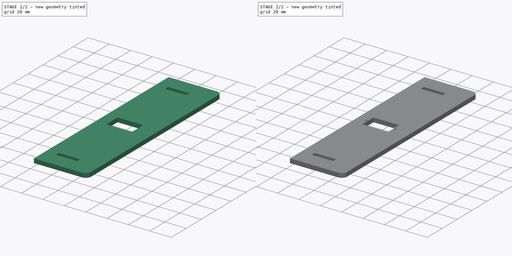
[diagram: build sequence overview — one tinted view per stage of 2, left to right]
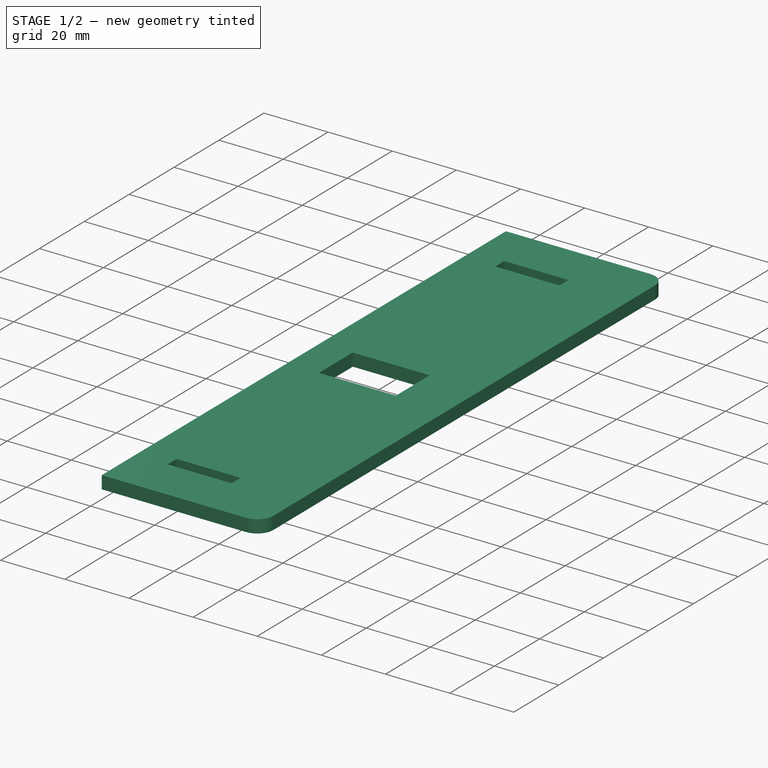
[diagram: stage 1 of 2 — iso view after this stage's code; geometry added in this stage tinted green]
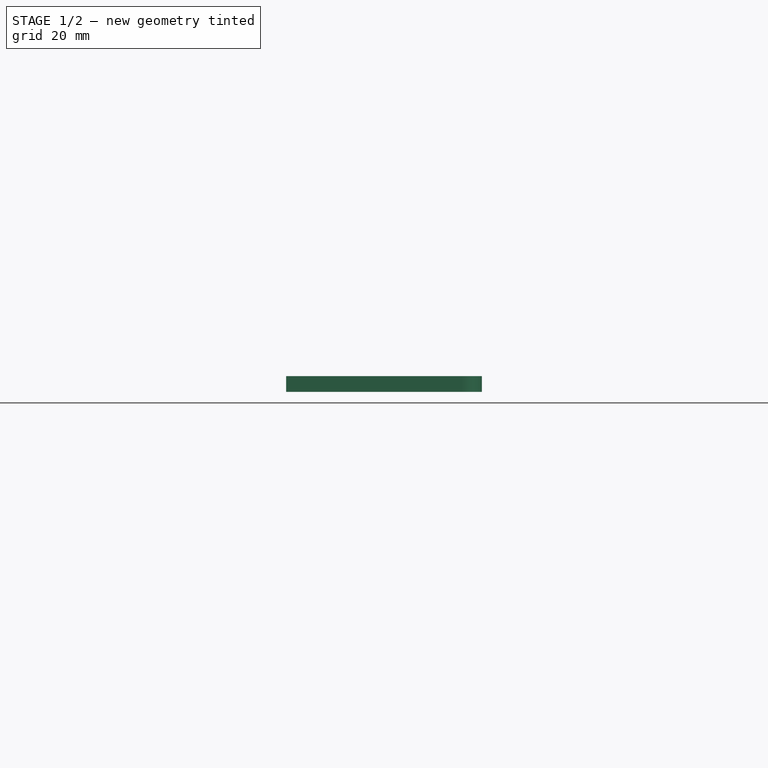
[diagram: stage 1 of 2 — front view after this stage's code; geometry added in this stage tinted green]
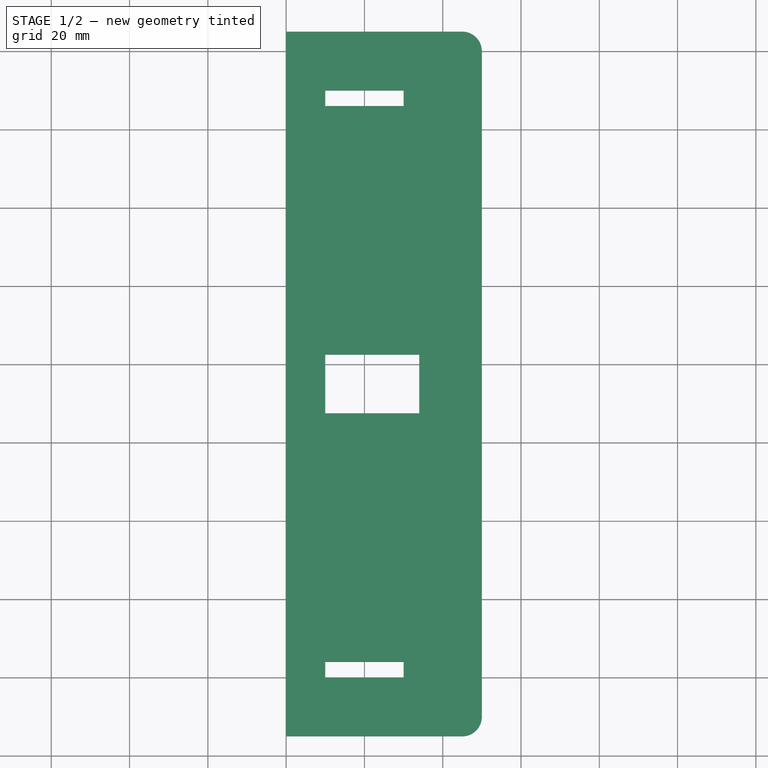
[diagram: stage 1 of 2 — top view after this stage's code; geometry added in this stage tinted green]
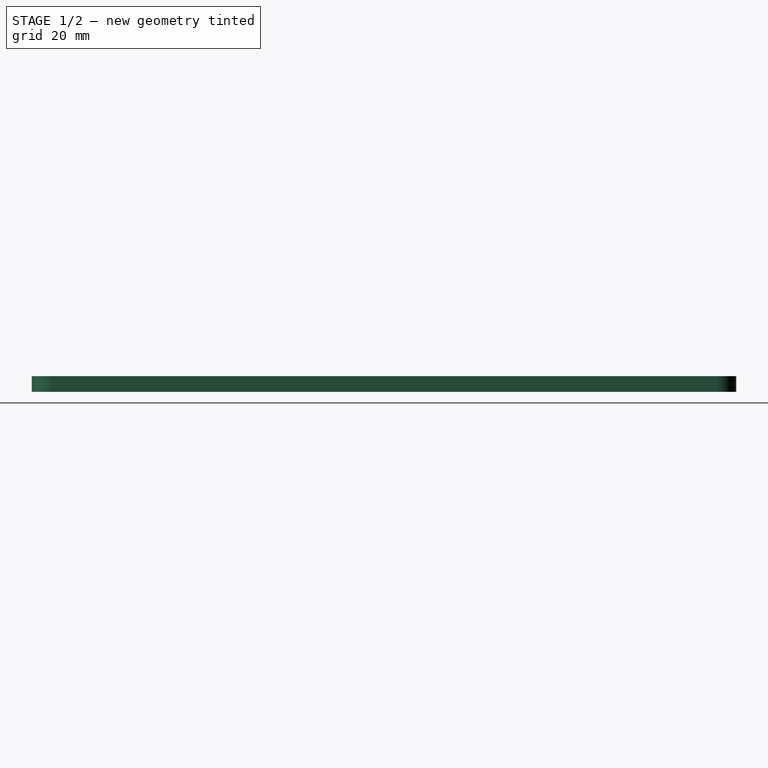
[diagram: stage 1 of 2 — right view after this stage's code; geometry added in this stage tinted green]
FCSTD DOCUMENT  (FreeCAD 1.0R39319 (Git))
Label: chassis_SERVO_STRUT_A4
License: All rights reserved
LicenseURL: https://en.wikipedia.org/wiki/All_rights_reserved
objects: Sketcher::SketchObject×4, PartDesign::Pad×1, PartDesign::Pocket×1, PartDesign::Body×1
note: 15 computed .brp shape members not serialized (recipe doc carries the construction recipe); baked Part::Feature solids carry a one-line shape summary decoded from their .brp

FEATURE [Sketcher::SketchObject] Sketch001
  ArcFitTolerance = 1e-06
  AttachmentSupport = -> [XY_Plane]
  FullyConstrained = false
  MakeInternals = false
  MapMode = 5
  sketch-geometry (8):
    g0: LineSegment StartX=0 StartY=0 StartZ=0 EndX=186.825 EndY=0 EndZ=0
    g1: LineSegment StartX=250 StartY=63.1748 StartZ=0 EndX=250 EndY=83.3235 EndZ=0
    g2: LineSegment StartX=183.324 StartY=150 StartZ=0 EndX=0 EndY=150 EndZ=0
    g3: LineSegment StartX=0 StartY=150 StartZ=0 EndX=0 EndY=0 EndZ=0
    g4: ArcOfCircle CenterX=183.324 CenterY=83.3235 CenterZ=0 NormalX=0 NormalY=0 NormalZ=1 AngleXU=0 Radius=66.6765 StartAngle=0 EndAngle=1.5708
    g5: GeomPoint [constr] X=250 Y=150 Z=0
    g6: ArcOfCircle CenterX=186.825 CenterY=63.1748 CenterZ=0 NormalX=0 NormalY=0 NormalZ=1 AngleXU=0 Radius=63.1748 StartAngle=4.71239 EndAngle=6.28319
    g7: GeomPoint [constr] X=250 Y=0 Z=0
  constraints (17):
    c: Coincident(g2,g3)
    c: Coincident(g3,g0)
    c: Horizontal(g0)
    c: Horizontal(g2)
    c: Vertical(g1)
    c: Vertical(g3)
    c: Coincident(g0,g-1)
    c: DistanceX(g2,g5) = 250
    c: DistanceY(g3,g3) = 150
    c: PointOnObject(g5,g2)
    c: PointOnObject(g5,g1)
    c: Tangent(g2,g4) = -1.5708
    c: Tangent(g1,g4) = -1.5708
    c: PointOnObject(g7,g0)
    c: PointOnObject(g7,g1)
    c: Tangent(g0,g6) = -1.5708
    c: Tangent(g1,g6) = -1.5708
FEATURE [Sketcher::SketchObject] Sketch
  ArcFitTolerance = 1e-06
  FullyConstrained = true
  MakeInternals = false
  MapMode = 5
  Placement = pos=(0,0,4) rot=(0,0,1;0rad)
  sketch-geometry (3):
    g0: Circle CenterX=200 CenterY=75 CenterZ=0 NormalX=0 NormalY=0 NormalZ=1 AngleXU=0 Radius=42.5
    g1: LineSegment [constr] StartX=200 StartY=75 StartZ=0 EndX=200 EndY=150 EndZ=0
    g2: LineSegment [constr] StartX=200 StartY=75 StartZ=0 EndX=200 EndY=0 EndZ=0
  constraints (9):
    c: Diameter(g0) = 85
    c: Coincident(g1,g0)
    c: PointOnObject(g1,g-3)
    c: Vertical(g1)
    c: Coincident(g2,g0)
    c: PointOnObject(g2,g-5)
    c: Vertical(g2)
    c: Equal(g2,g1)
    c: DistanceX(g0,g-4) = 50
FEATURE [Sketcher::SketchObject] Sketch002
  ArcFitTolerance = 1e-06
  AttachmentSupport = -> [XY_Plane]
  ExternalGeometry = -> [Sketch001,Sketch]
  FullyConstrained = false
  MakeInternals = false
  MapMode = 5
  sketch-geometry (29):
    g0: LineSegment StartX=100 StartY=165 StartZ=0 EndX=100 EndY=-15 EndZ=0
    g1: LineSegment StartX=100 StartY=-15 StartZ=0 EndX=145 EndY=-15 EndZ=0
    g2: LineSegment StartX=150 StartY=-10 StartZ=0 EndX=150 EndY=0 EndZ=0
    g3: LineSegment StartX=145 StartY=165 StartZ=0 EndX=100 EndY=165 EndZ=0
    g4: LineSegment [constr] StartX=200 StartY=75 StartZ=0 EndX=150 EndY=75 EndZ=0
    g5: LineSegment StartX=150 StartY=150 StartZ=0 EndX=150 EndY=160 EndZ=0
    g6: LineSegment StartX=150 StartY=0 StartZ=0 EndX=150 EndY=150 EndZ=0
    g7: LineSegment StartX=110 StartY=82.5 StartZ=0 EndX=110 EndY=67.5 EndZ=0
    g8: LineSegment StartX=110 StartY=67.5 StartZ=0 EndX=134 EndY=67.5 EndZ=0
    g9: LineSegment StartX=134 StartY=67.5 StartZ=0 EndX=134 EndY=75 EndZ=0
    g10: LineSegment StartX=134 StartY=82.5 StartZ=0 EndX=110 EndY=82.5 EndZ=0
    g11: LineSegment [constr] StartX=150 StartY=75 StartZ=0 EndX=110 EndY=75 EndZ=0
    g12: LineSegment StartX=134 StartY=75 StartZ=0 EndX=134 EndY=82.5 EndZ=0
    g13: LineSegment StartX=130 StartY=150 StartZ=0 EndX=130 EndY=146 EndZ=0
    g14: LineSegment StartX=130 StartY=146 StartZ=0 EndX=110 EndY=146 EndZ=0
    g15: LineSegment StartX=110 StartY=146 StartZ=0 EndX=110 EndY=150 EndZ=0
    g16: LineSegment StartX=110 StartY=150 StartZ=0 EndX=130 EndY=150 EndZ=0
    g17: LineSegment StartX=110 StartY=4 StartZ=0 EndX=110 EndY=0 EndZ=0
    g18: LineSegment StartX=110 StartY=0 StartZ=0 EndX=130 EndY=0 EndZ=0
    g19: LineSegment StartX=130 StartY=0 StartZ=0 EndX=130 EndY=4 EndZ=0
    g20: LineSegment StartX=130 StartY=4 StartZ=0 EndX=110 EndY=4 EndZ=0
    g21: LineSegment [constr] StartX=110 StartY=4 StartZ=0 EndX=110 EndY=146 EndZ=0
    g22: LineSegment [constr] StartX=130 StartY=4 StartZ=0 EndX=130 EndY=146 EndZ=0
    g23: LineSegment [constr] StartX=110 StartY=75 StartZ=0 EndX=103.314 EndY=75 EndZ=0
    g24: LineSegment [constr] StartX=136.778 StartY=75 StartZ=0 EndX=121.998 EndY=75 EndZ=0
    g25: ArcOfCircle CenterX=145 CenterY=-10 CenterZ=0 NormalX=0 NormalY=0 NormalZ=1 AngleXU=0 Radius=5 StartAngle=4.71239 EndAngle=6.28319
    g26: GeomPoint [constr] X=150 Y=-15 Z=0
    g27: ArcOfCircle CenterX=145 CenterY=160 CenterZ=0 NormalX=0 NormalY=0 NormalZ=1 AngleXU=0 Radius=5 StartAngle=2.4e-15 EndAngle=1.5708
    g28: GeomPoint [constr] X=150 Y=165 Z=0
  constraints (77):
    c: Coincident(g0,g1)
    c: Coincident(g3,g0)
    c: Vertical(g0)
    c: Vertical(g2)
    c: Horizontal(g1)
    c: Horizontal(g3)
    c: DistanceX(g1,g26) = 50
    c: Coincident(g4,g-4)
    c: Symmetric(g26,g28,g4)
    c: Horizontal(g4)
    c: PointOnObject(g5,g-3)
    c: Coincident(g6,g2)
    c: Coincident(g6,g5)
    c: Vertical(g6)
    c: DistanceY(g26,g28) = 180
    c: Coincident(g7,g8)
    c: Coincident(g8,g9)
    c: Coincident(g10,g7)
    c: Vertical(g7)
    c: Vertical(g9)
    c: Horizontal(g8)
    c: Horizontal(g10)
    c: Coincident(g11,g4)
    c: PointOnObject(g11,g7)
    c: Horizontal(g11)
    c: PointOnObject(g9,g11)
    c: Coincident(g12,g9)
    c: Coincident(g12,g10)
    c: Vertical(g12)
    c: Equal(g9,g12)
    c: DistanceX(g8,g8) = 24
    c: DistanceY(g7,g7) = 15
    c: Coincident(g13,g14)
    c: Vertical(g13)
    c: Horizontal(g14)
    c: Coincident(g15,g14)
    c: PointOnObject(g15,g-3)
    c: Vertical(g15)
    c: Coincident(g16,g15)
    c: Coincident(g16,g13)
    c: Horizontal(g16)
    c: DistanceX(g-1,g0) = 100
    c: Coincident(g17,g18)
    c: Coincident(g18,g19)
    c: Coincident(g19,g20)
    c: Coincident(g20,g17)
    c: Vertical(g17)
    c: Vertical(g19)
    c: Horizontal(g18)
    c: Horizontal(g20)
    c: PointOnObject(g18,g-1)
    c: Coincident(g21,g17)
    c: Coincident(g21,g14)
    c: Vertical(g21)
    c: Coincident(g22,g19)
    c: Coincident(g22,g13)
    c: Vertical(g22)
    c: Equal(g17,g15)
    c: DistanceX(g16,g16) = 20
    c: DistanceY(g13,g13) = 4
    c: PointOnObject(g7,g21)
    c: Vertical(g5)
    c: DistanceX(g0,g17) = 10
    c: Coincident(g23,g11)
    c: Horizontal(g23)
    c: PointOnObject(g24,g11)
    c: PointOnObject(g24,g11)
    c: PointOnObject(g26,g1)
    c: PointOnObject(g26,g2)
    c: Tangent(g1,g25) = -1.5708
    c: Tangent(g2,g25) = -1.5708
    c: PointOnObject(g28,g3)
    c: PointOnObject(g28,g5)
    c: Tangent(g3,g27) = -1.5708
    c: Tangent(g5,g27) = -1.5708
    c: Equal(g25,g27)
    c: Diameter(g27) = 10
FEATURE [PartDesign::Pad] Pad
  Direction = (0,0,1)
  Length = 4
  Length2 = 10
  Profile = -> Sketch002
  ReferenceAxis = -> Sketch002 [N_Axis]
  Refine = true
  Suppressed = false
  Type = 0
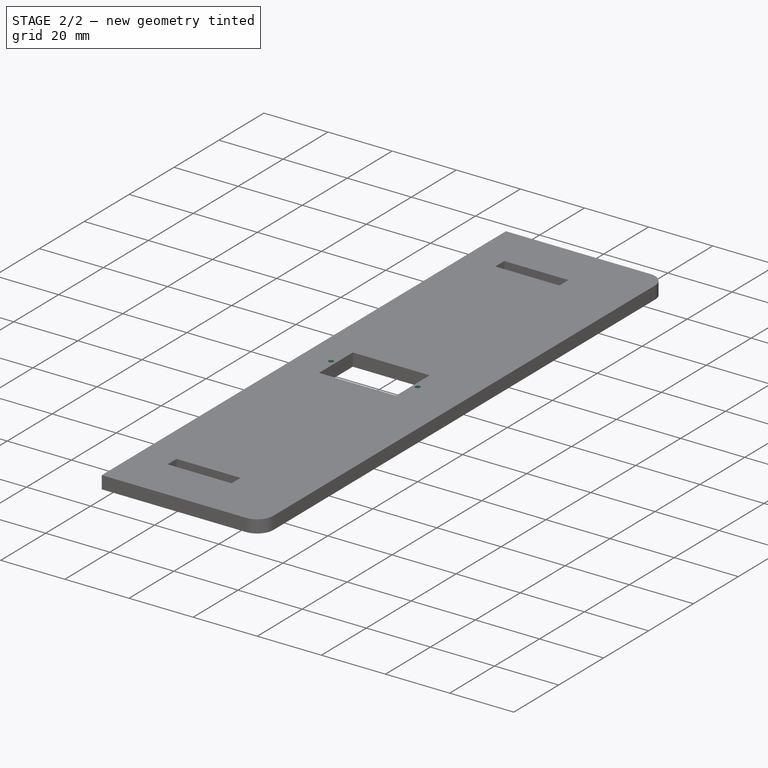
[diagram: stage 2 of 2 — iso view after this stage's code; geometry added in this stage tinted green]
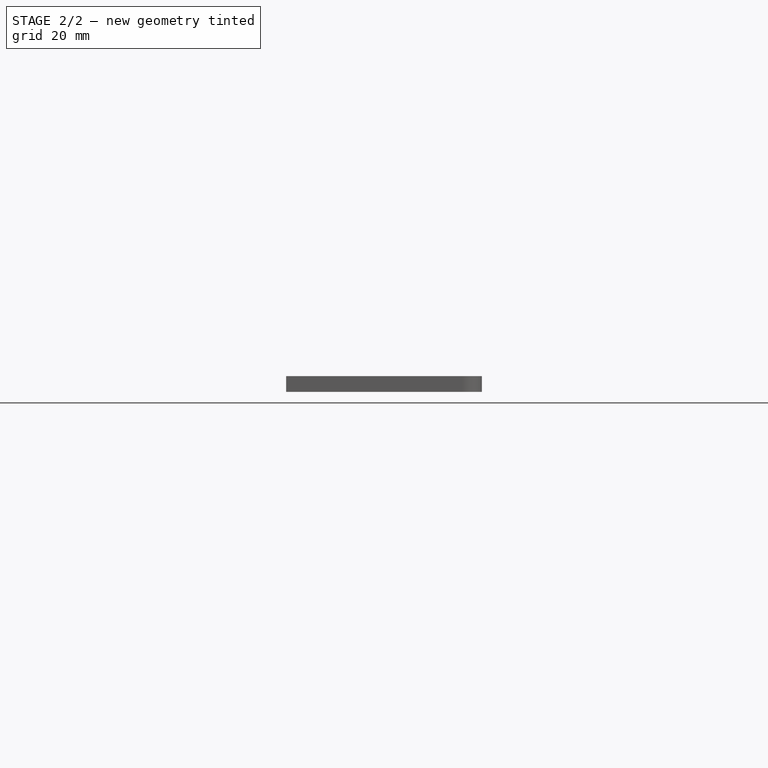
[diagram: stage 2 of 2 — front view after this stage's code; geometry added in this stage tinted green]
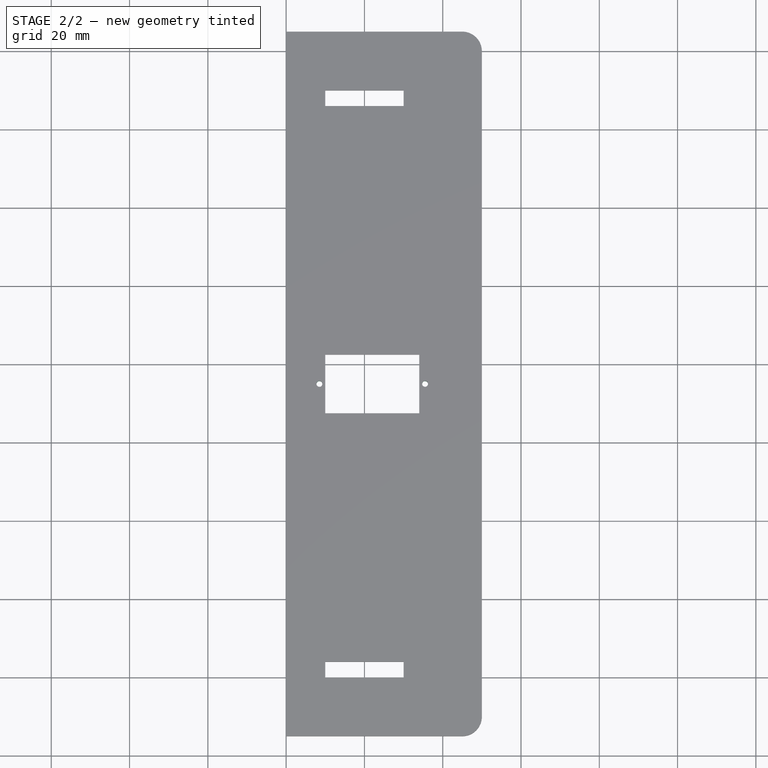
[diagram: stage 2 of 2 — top view after this stage's code; geometry added in this stage tinted green]
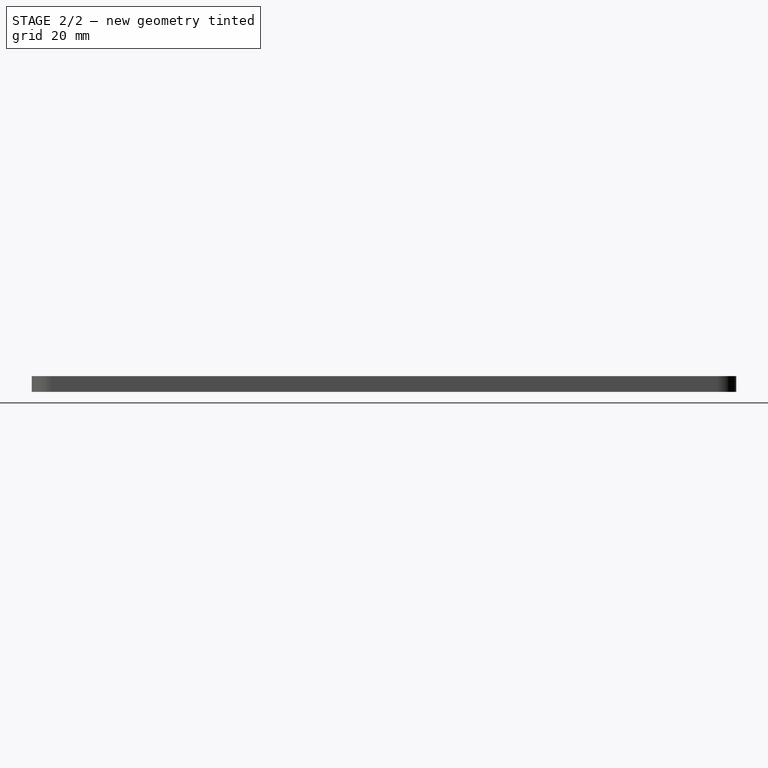
[diagram: stage 2 of 2 — right view after this stage's code; geometry added in this stage tinted green]
FEATURE [Sketcher::SketchObject] Sketch003
  ArcFitTolerance = 1e-06
  AttachmentSupport = -> [Pad]
  ExternalGeometry = -> [Pad]
  FullyConstrained = true
  MakeInternals = false
  MapMode = 5
  Placement = pos=(0,0,4) rot=(0,0,1;0rad)
  sketch-geometry (6):
    g0: LineSegment [constr] StartX=108.5 StartY=75 StartZ=0 EndX=122 EndY=75 EndZ=0
    g1: LineSegment [constr] StartX=122 StartY=75 StartZ=0 EndX=135.5 EndY=75 EndZ=0
    g2: LineSegment [constr] StartX=110 StartY=67.5 StartZ=0 EndX=122 EndY=75 EndZ=0
    g3: LineSegment [constr] StartX=122 StartY=75 StartZ=0 EndX=134 EndY=82.5 EndZ=0
    g4: Circle CenterX=108.5 CenterY=75 CenterZ=0 NormalX=0 NormalY=0 NormalZ=1 AngleXU=0 Radius=0.75
    g5: Circle CenterX=135.5 CenterY=75 CenterZ=0 NormalX=0 NormalY=0 NormalZ=1 AngleXU=0 Radius=0.75
  constraints (15):
    c: Horizontal(g0)
    c: Coincident(g1,g0)
    c: Horizontal(g1)
    c: Coincident(g2,g-4)
    c: Coincident(g2,g0)
    c: Coincident(g3,g0)
    c: Coincident(g3,g-3)
    c: Equal(g3,g2)
    c: Parallel(g2,g3)
    c: Equal(g1,g0)
    c: Coincident(g4,g0)
    c: Coincident(g5,g1)
    c: Equal(g5,g4)
    c: Diameter(g5) = 1.5
    c: DistanceX(g0,g1) = 27
FEATURE [PartDesign::Pocket] Pocket
  BaseFeature = -> Pad
  Direction = (0,0,-1)
  Length = 5
  Length2 = 5
  Profile = -> Sketch003
  ReferenceAxis = -> Sketch003 [N_Axis]
  Refine = true
  Suppressed = false
  Type = 0
FEATURE [PartDesign::Body] Body
  AllowCompound = false
  Group = -> [Sketch001,Sketch,Sketch002,Pad,Sketch003,Pocket]
  Origin = -> Origin
  Tip = -> Pocket
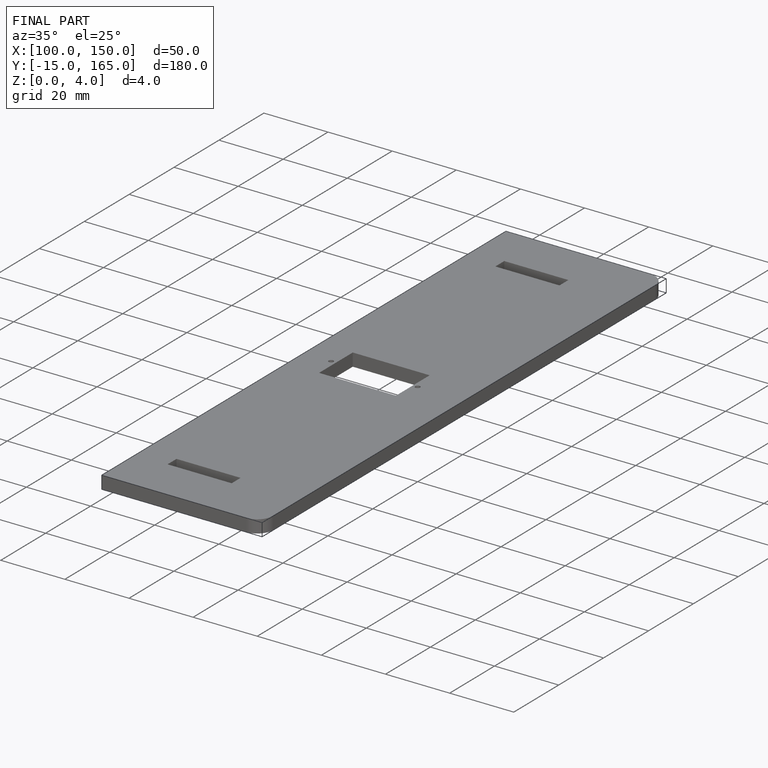
[diagram: finished part — iso view with bounding-box wireframe]
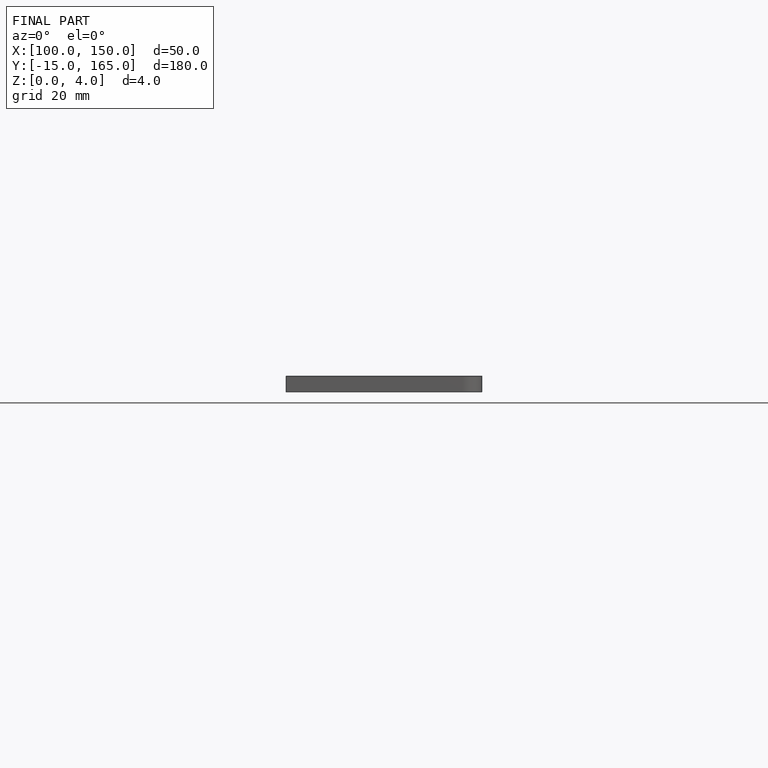
[diagram: finished part — front view with bounding-box wireframe]
